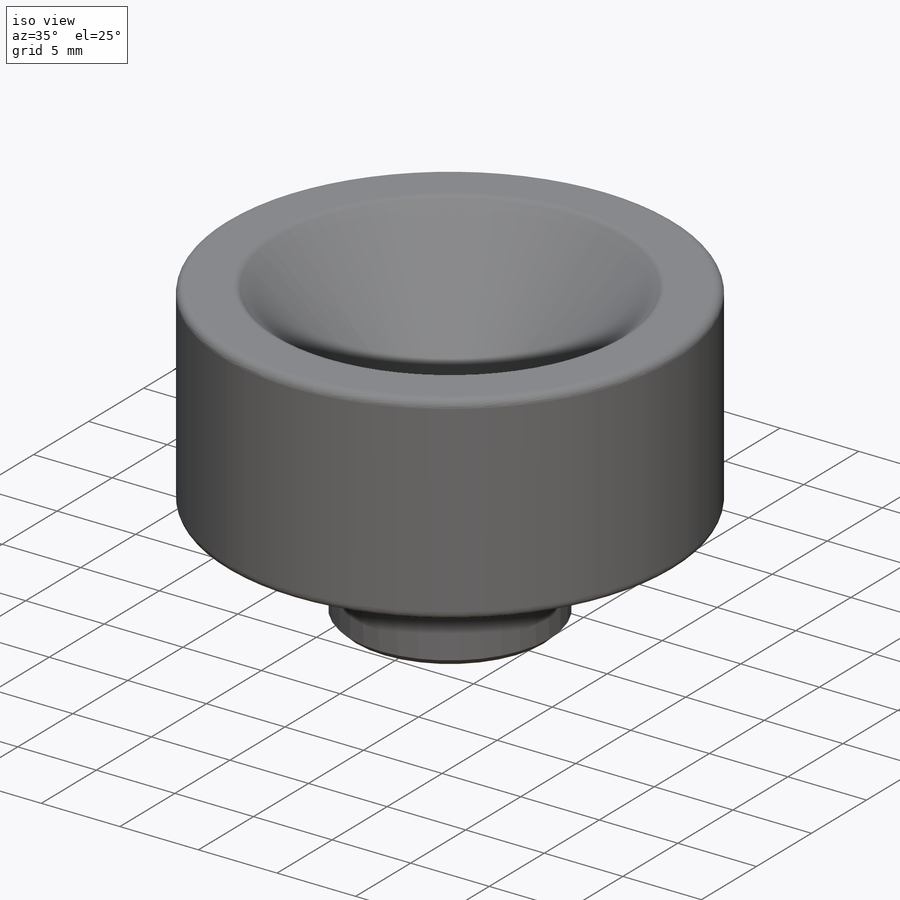
[diagram: iso view]
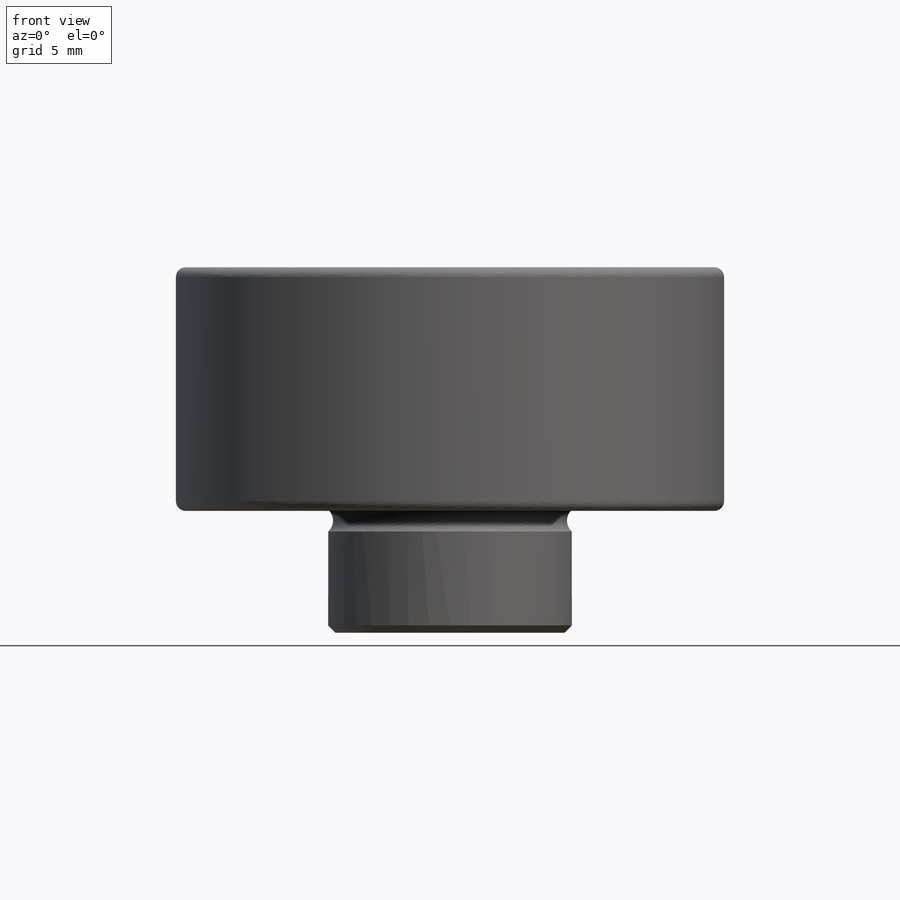
[diagram: front view]
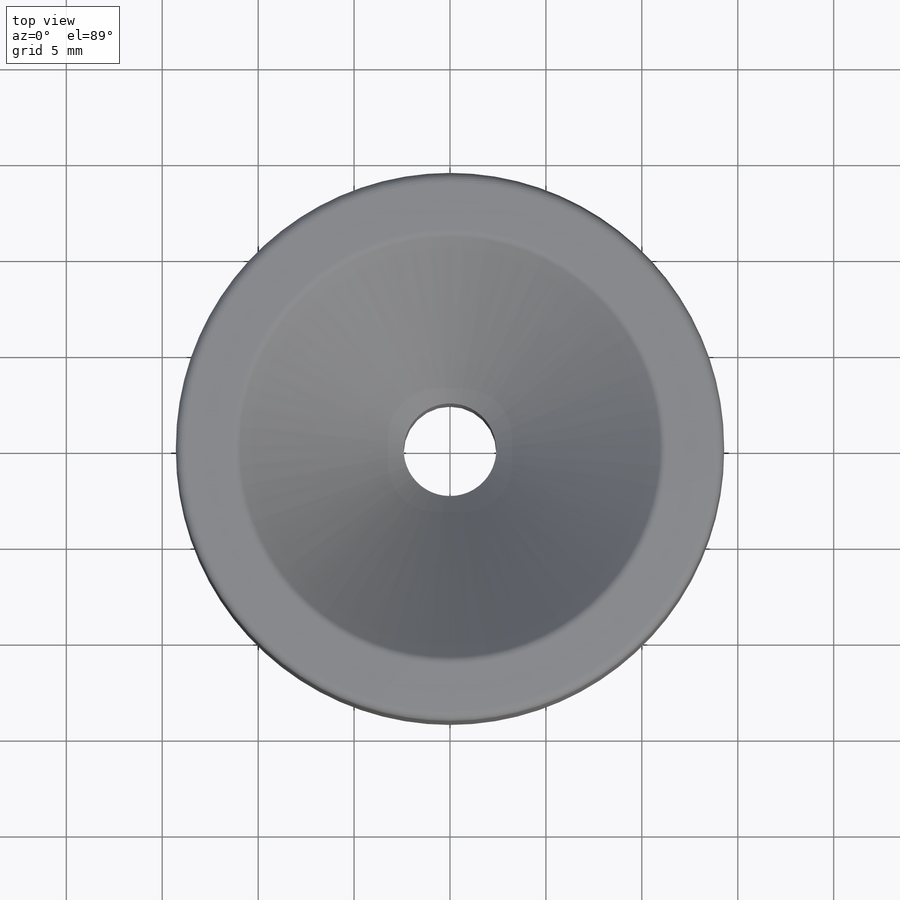
[diagram: top view]
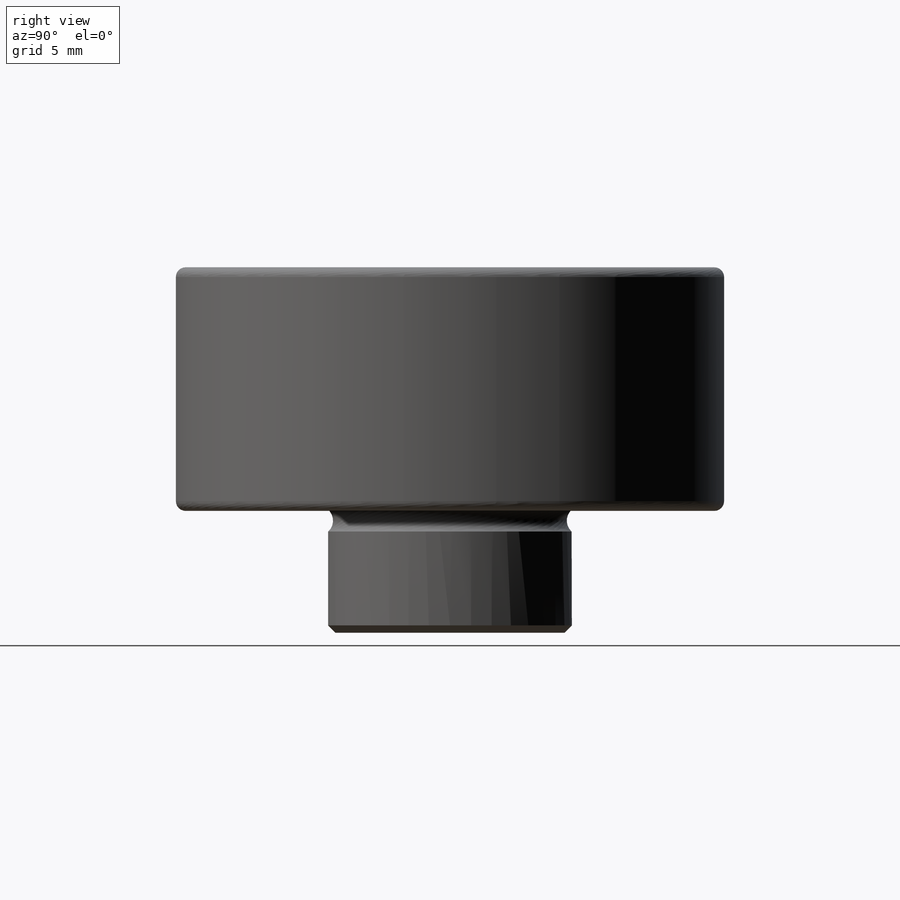
[diagram: right view]
SOLIDWORKS PART (.sldprt)
format: sldprt  version: not decoded by parser v0  size: 318,464 bytes
history: native  units: mm
features: plane x3, sketch x2, chamfer x2, material x1, revolve x1, thread x1, cut_revolve x1, fillet x1 + 2 further entries (+9 scaffold rows collapsed)
feature tree (23):
  scaffold x9  (default folders/planes/origin — collapsed)
  material  "Material <not specified>"
  plane  "Plane X-Y"
  plane  "Plane X-Z"
  plane  "Plane Y-Z"
  "Axis - Y"
  "Axis - Z"
  sketch  "Sketch1"  dims[c1.D1=4.826mm c1.D2=0.762mm c1.D3=~24.756672mm c2.D3=45.0deg c2.D4=12.7mm c2.D5=~13.116393mm c3.D5=45.0deg c3.D6=22.225mm c3.D7=28.575mm c3.D8=12.7mm c3.D2=6.35mm]
  revolve  "Revolve1"  [1 undecoded]
  thread  "Cosmetic Thread1"  Diameter=6.35mm  [1 undecoded]
  sketch  "Sketch2"  dims[D1=1.524mm D2=0.254mm D3=0.254mm]
  cut_revolve  "Cut-Revolve1"  Angle=360deg
  chamfer  "Chamfer1"  Distance=0.381mm Angle=45deg
  fillet  "Fillet1"  Radius=0.508mm
  chamfer  "Chamfer2"  Distance=0.381mm Angle=45deg
decode coverage: 7 of 8 modeling features carry decoded parameters; 2 rows unclassified (native names shown)
note: ~ marks probable driven/reference dimensions
note: 2 parameter values undecoded
note: suppression state not decoded; provenance and decode notes live in map.json
